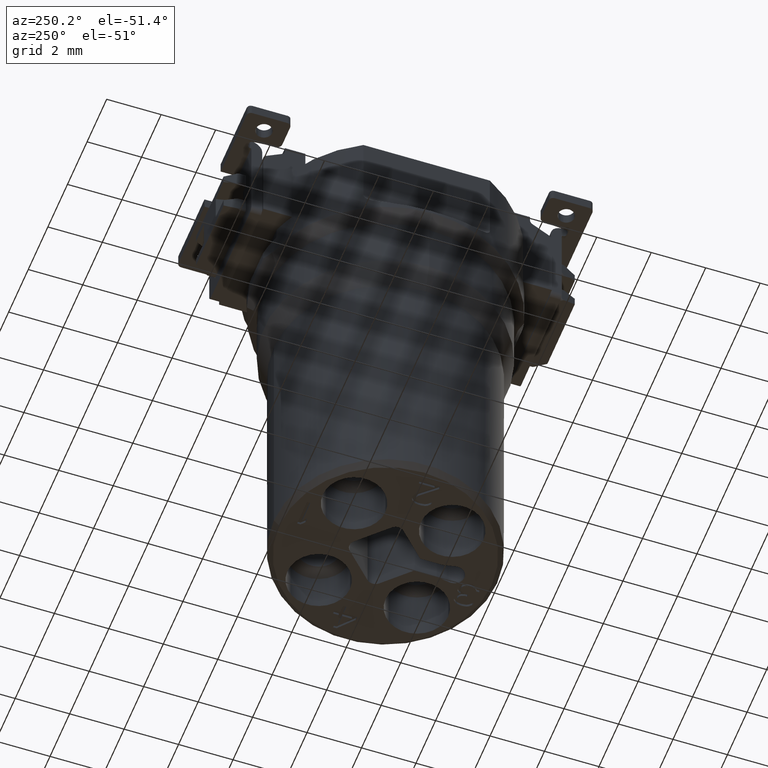
[diagram: clean part render]
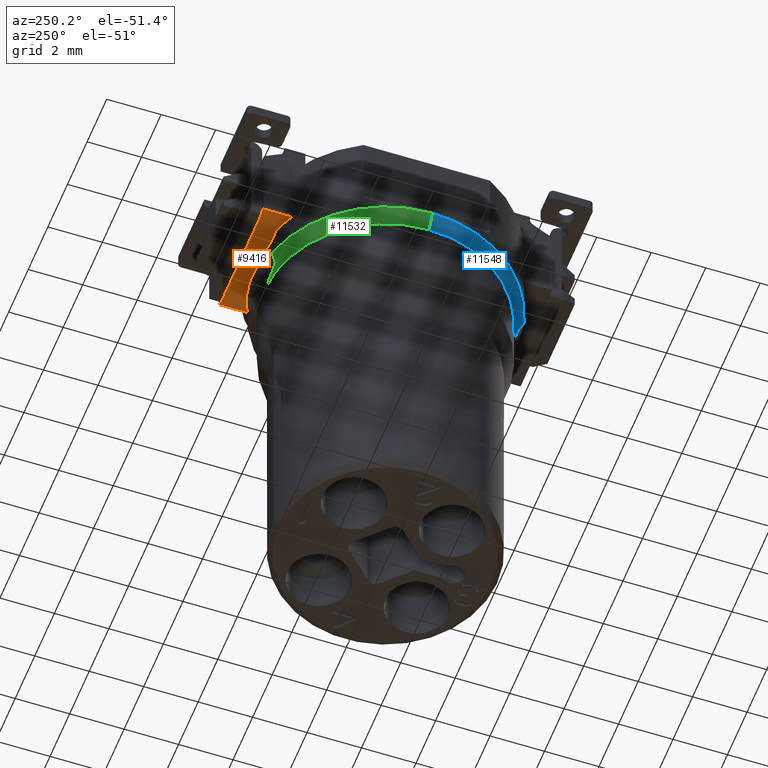
[diagram: same view with three faces highlighted in distinct colors, each labeled with its STEP entity id]
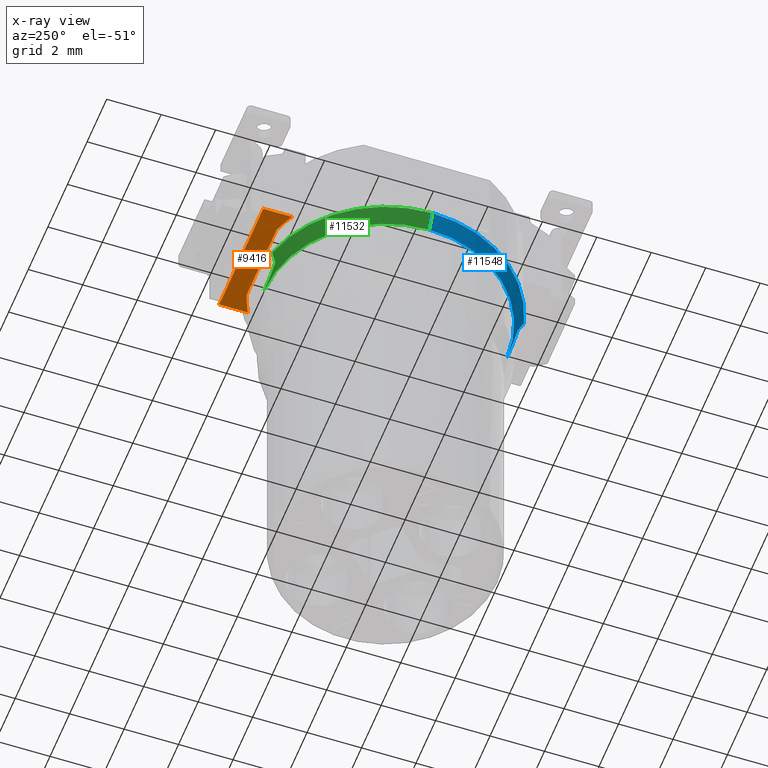
[diagram: x-ray of the same camera — body ghosted, the three highlighted faces saturated]
A machine part, auxiliary view with three faces highlighted in distinct colors.
The next image is the same camera in x-ray (body ghosted, the three faces saturated) — at least one of them is partly hidden behind the body in this view.
Their STEP definitions:

[orange] entity #9416 — the highlighted planar face has unit normal (0, 0, -1).
#894=DIRECTION('',(-1.E0,0.E0,0.E0));
#895=VECTOR('',#894,1.259600488516E-1);
#896=CARTESIAN_POINT('',(-2.124039951148E0,5.3E0,-3.7E0));
#897=LINE('',#896,#895);
#898=DIRECTION('',(0.E0,-1.E0,0.E0));
#899=VECTOR('',#898,1.060011792469E0);
#900=CARTESIAN_POINT('',(-2.25E0,5.3E0,-3.7E0));
#901=LINE('',#900,#899);
#902=CARTESIAN_POINT('',(0.E0,0.E0,-3.7E0));
#903=DIRECTION('',(0.E0,0.E0,1.E0));
#904=DIRECTION('',(-3.185184344046E-1,9.479166666667E-1,0.E0));
#905=AXIS2_PLACEMENT_3D('',#902,#903,#904);
#907=CARTESIAN_POINT('',(0.E0,0.E0,-3.7E0));
#908=DIRECTION('',(0.E0,0.E0,1.E0));
#909=DIRECTION('',(4.6875E-1,8.833308765689E-1,0.E0));
#910=AXIS2_PLACEMENT_3D('',#907,#908,#909);
#912=DIRECTION('',(0.E0,1.E0,0.E0));
#913=VECTOR('',#912,1.060011792469E0);
#914=CARTESIAN_POINT('',(2.25E0,4.239988207531E0,-3.7E0));
#915=LINE('',#914,#913);
#916=DIRECTION('',(-1.E0,0.E0,0.E0));
#917=VECTOR('',#916,1.259600488516E-1);
#918=CARTESIAN_POINT('',(2.25E0,5.3E0,-3.7E0));
#919=LINE('',#918,#917);
#920=DIRECTION('',(-1.E0,0.E0,0.E0));
#921=VECTOR('',#920,4.248079902297E0);
#922=CARTESIAN_POINT('',(2.124039951148E0,5.3E0,-3.7E0));
#923=LINE('',#922,#921);
#2411=DIRECTION('',(1.E0,0.E0,0.E0));
#2412=VECTOR('',#2411,3.057776970284E0);
#2413=CARTESIAN_POINT('',(-1.528888485142E0,4.55E0,-3.7E0));
#2414=LINE('',#2413,#2412);
#6758=CARTESIAN_POINT('',(-2.25E0,4.239988207531E0,-3.7E0));
#6760=VERTEX_POINT('',#6758);
#6768=CARTESIAN_POINT('',(2.25E0,4.239988207531E0,-3.7E0));
#6769=CARTESIAN_POINT('',(2.25E0,5.3E0,-3.7E0));
#6770=VERTEX_POINT('',#6768);
#6771=VERTEX_POINT('',#6769);
#6772=CARTESIAN_POINT('',(-2.25E0,5.3E0,-3.7E0));
#6773=VERTEX_POINT('',#6772);
#6777=CARTESIAN_POINT('',(1.528888485142E0,4.55E0,-3.7E0));
#6779=VERTEX_POINT('',#6777);
#6781=CARTESIAN_POINT('',(-1.528888485142E0,4.55E0,-3.7E0));
#6783=VERTEX_POINT('',#6781);
#8127=CARTESIAN_POINT('',(2.124039951148E0,5.3E0,-3.7E0));
#8128=CARTESIAN_POINT('',(-2.124039951148E0,5.3E0,-3.7E0));
#8129=VERTEX_POINT('',#8127);
#8130=VERTEX_POINT('',#8128);
#9397=CARTESIAN_POINT('',(0.E0,0.E0,-3.7E0));
#9398=DIRECTION('',(0.E0,0.E0,-1.E0));
#9399=DIRECTION('',(0.E0,-1.E0,0.E0));
#9400=AXIS2_PLACEMENT_3D('',#9397,#9398,#9399);
#9401=PLANE('',#9400);
#9403=ORIENTED_EDGE('',*,*,#9402,.T.);
#9404=ORIENTED_EDGE('',*,*,#9334,.T.);
#9405=ORIENTED_EDGE('',*,*,#8444,.F.);
#9407=ORIENTED_EDGE('',*,*,#9406,.T.);
#9409=ORIENTED_EDGE('',*,*,#9408,.F.);
#9410=ORIENTED_EDGE('',*,*,#8711,.T.);
#9411=ORIENTED_EDGE('',*,*,#8824,.T.);
#9413=ORIENTED_EDGE('',*,*,#9412,.T.);
#9414=EDGE_LOOP('',(#9403,#9404,#9405,#9407,#9409,#9410,#9411,#9413));
#9415=FACE_OUTER_BOUND('',#9414,.F.);
#906=CIRCLE('',#905,4.8E0);
#911=CIRCLE('',#910,4.8E0);
#8444=EDGE_CURVE('',#6783,#6760,#906,.T.);
#8711=EDGE_CURVE('',#6770,#6771,#915,.T.);
#8824=EDGE_CURVE('',#6771,#8129,#919,.T.);
#9334=EDGE_CURVE('',#6773,#6760,#901,.T.);
#9402=EDGE_CURVE('',#8130,#6773,#897,.T.);
#9406=EDGE_CURVE('',#6783,#6779,#2414,.T.);
#9408=EDGE_CURVE('',#6770,#6779,#911,.T.);
#9412=EDGE_CURVE('',#8129,#8130,#923,.T.);
#9416=ADVANCED_FACE('',(#9415),#9401,.T.);

[blue] entity #11548 — the highlighted conical surface has half-angle 34.992 deg.
#2529=CARTESIAN_POINT('',(0.E0,0.E0,-4.7E0));
#2530=DIRECTION('',(0.E0,0.E0,-1.E0));
#2531=DIRECTION('',(-2.689013447616E-1,-9.631677251577E-1,0.E0));
#2532=AXIS2_PLACEMENT_3D('',#2529,#2530,#2531);
#2534=CARTESIAN_POINT('',(-1.290726454855E0,-4.623205080757E0,-4.7E0));
#2535=CARTESIAN_POINT('',(-1.272161591638E0,-4.603177961809E0,
-4.734687987547E0));
#2536=CARTESIAN_POINT('',(-1.235148748706E0,-4.563641098756E0,
-4.803167843127E0));
#2537=CARTESIAN_POINT('',(-1.179928219084E0,-4.505896828941E0,
-4.903183852292E0));
#2538=CARTESIAN_POINT('',(-1.143281396589E0,-4.468455072203E0,
-4.968034877287E0));
#2539=CARTESIAN_POINT('',(-1.124988888834E0,-4.45E0,-5.E0));
#2541=CARTESIAN_POINT('',(-1.124988888834E0,-4.45E0,-5.E0));
#2542=CARTESIAN_POINT('',(-9.952974758998E-1,-4.45E0,-5.045409710093E0));
#2543=CARTESIAN_POINT('',(-7.389221636790E-1,-4.45E0,-5.120269708344E0));
#2544=CARTESIAN_POINT('',(-3.675566821245E-1,-4.45E0,-5.185575820879E0));
#2545=CARTESIAN_POINT('',(-1.218251350122E-1,-4.45E0,-5.2E0));
#2546=CARTESIAN_POINT('',(0.E0,-4.45E0,-5.2E0));
#2548=CARTESIAN_POINT('',(0.E0,0.E0,-5.2E0));
#2549=DIRECTION('',(0.E0,0.E0,1.E0));
#2550=DIRECTION('',(-1.E0,0.E0,0.E0));
#2551=AXIS2_PLACEMENT_3D('',#2548,#2549,#2550);
#2553=DIRECTION('',(5.734623443633E-1,0.E0,-8.192319205190E-1));
#2554=VECTOR('',#2553,6.103277807867E-1);
#2555=CARTESIAN_POINT('',(-4.8E0,0.E0,-4.7E0));
#2556=LINE('',#2555,#2554);
#6566=CARTESIAN_POINT('',(-4.45E0,0.E0,-5.2E0));
#6567=VERTEX_POINT('',#6566);
#6774=CARTESIAN_POINT('',(-4.8E0,0.E0,-4.7E0));
#6775=VERTEX_POINT('',#6774);
#6786=CARTESIAN_POINT('',(-1.290726454855E0,-4.623205080757E0,-4.7E0));
#6787=VERTEX_POINT('',#6786);
#6794=CARTESIAN_POINT('',(0.E0,-4.45E0,-5.2E0));
#6795=VERTEX_POINT('',#6794);
#7391=VERTEX_POINT('',#2541);
#11533=CARTESIAN_POINT('',(0.E0,0.E0,-4.95E0));
#11534=DIRECTION('',(0.E0,0.E0,1.E0));
#11535=DIRECTION('',(-1.E0,0.E0,0.E0));
#11536=AXIS2_PLACEMENT_3D('',#11533,#11534,#11535);
#11537=CONICAL_SURFACE('',#11536,4.625E0,3.499202019856E1);
#11538=ORIENTED_EDGE('',*,*,#8430,.F.);
#11540=ORIENTED_EDGE('',*,*,#11539,.T.);
#11542=ORIENTED_EDGE('',*,*,#11541,.T.);
#11544=ORIENTED_EDGE('',*,*,#11543,.F.);
#11545=ORIENTED_EDGE('',*,*,#11523,.F.);
#11546=EDGE_LOOP('',(#11538,#11540,#11542,#11544,#11545));
#11547=FACE_OUTER_BOUND('',#11546,.F.);
#2533=CIRCLE('',#2532,4.8E0);
#2540=B_SPLINE_CURVE_WITH_KNOTS('',3,(#2534,#2535,#2536,#2537,#2538,#2539),
.UNSPECIFIED.,.F.,.F.,(4,1,1,4),(0.E0,3.333333333333E-1,6.666666666667E-1,1.E0),
.UNSPECIFIED.);
#2547=B_SPLINE_CURVE_WITH_KNOTS('',3,(#2541,#2542,#2543,#2544,#2545,#2546),
.UNSPECIFIED.,.F.,.F.,(4,1,1,4),(0.E0,3.333333333333E-1,6.666666666667E-1,1.E0),
.UNSPECIFIED.);
#2552=CIRCLE('',#2551,4.45E0);
#8430=EDGE_CURVE('',#6787,#6775,#2533,.T.);
#11523=EDGE_CURVE('',#6775,#6567,#2556,.T.);
#11539=EDGE_CURVE('',#6787,#7391,#2540,.T.);
#11541=EDGE_CURVE('',#7391,#6795,#2547,.T.);
#11543=EDGE_CURVE('',#6567,#6795,#2552,.T.);
#11548=ADVANCED_FACE('',(#11547),#11537,.T.);

[green] entity #11532 — the highlighted conical surface has half-angle 34.992 deg.
#2505=CARTESIAN_POINT('',(0.E0,0.E0,-4.7E0));
#2506=DIRECTION('',(0.E0,0.E0,1.E0));
#2507=DIRECTION('',(-2.689013447616E-1,9.631677251577E-1,0.E0));
#2508=AXIS2_PLACEMENT_3D('',#2505,#2506,#2507);
#2510=CARTESIAN_POINT('',(0.E0,0.E0,-5.2E0));
#2511=DIRECTION('',(0.E0,0.E0,1.E0));
#2512=DIRECTION('',(0.E0,1.E0,0.E0));
#2513=AXIS2_PLACEMENT_3D('',#2510,#2511,#2512);
#2515=CARTESIAN_POINT('',(0.E0,4.45E0,-5.2E0));
#2516=CARTESIAN_POINT('',(-1.219344553001E-1,4.45E0,-5.2E0));
#2517=CARTESIAN_POINT('',(-3.678125658986E-1,4.45E0,-5.185553559415E0));
#2518=CARTESIAN_POINT('',(-7.392965885697E-1,4.45E0,-5.120178727336E0));
#2519=CARTESIAN_POINT('',(-9.954533681451E-1,4.45E0,-5.045355126512E0));
#2520=CARTESIAN_POINT('',(-1.124988888834E0,4.45E0,-5.E0));
#2522=CARTESIAN_POINT('',(-1.124988888834E0,4.45E0,-5.E0));
#2523=CARTESIAN_POINT('',(-1.143281403019E0,4.468455078690E0,
-4.968034866051E0));
#2524=CARTESIAN_POINT('',(-1.179928233828E0,4.505896844140E0,
-4.903183825967E0));
#2525=CARTESIAN_POINT('',(-1.235148762960E0,4.563641113875E0,
-4.803167816939E0));
#2526=CARTESIAN_POINT('',(-1.272161597662E0,4.603177968307E0,
-4.734687976292E0));
#2527=CARTESIAN_POINT('',(-1.290726454855E0,4.623205080757E0,-4.7E0));
#2553=DIRECTION('',(5.734623443633E-1,0.E0,-8.192319205190E-1));
#2554=VECTOR('',#2553,6.103277807867E-1);
#2555=CARTESIAN_POINT('',(-4.8E0,0.E0,-4.7E0));
#2556=LINE('',#2555,#2554);
#6566=CARTESIAN_POINT('',(-4.45E0,0.E0,-5.2E0));
#6567=VERTEX_POINT('',#6566);
#6774=CARTESIAN_POINT('',(-4.8E0,0.E0,-4.7E0));
#6775=VERTEX_POINT('',#6774);
#6784=CARTESIAN_POINT('',(-1.290726454855E0,4.623205080757E0,-4.7E0));
#6785=VERTEX_POINT('',#6784);
#6792=CARTESIAN_POINT('',(0.E0,4.45E0,-5.2E0));
#6793=VERTEX_POINT('',#6792);
#7376=VERTEX_POINT('',#2522);
#11517=CARTESIAN_POINT('',(0.E0,0.E0,-4.95E0));
#11518=DIRECTION('',(0.E0,0.E0,1.E0));
#11519=DIRECTION('',(-1.E0,0.E0,0.E0));
#11520=AXIS2_PLACEMENT_3D('',#11517,#11518,#11519);
#11521=CONICAL_SURFACE('',#11520,4.625E0,3.499202019856E1);
#11522=ORIENTED_EDGE('',*,*,#8432,.T.);
#11524=ORIENTED_EDGE('',*,*,#11523,.T.);
#11526=ORIENTED_EDGE('',*,*,#11525,.F.);
#11528=ORIENTED_EDGE('',*,*,#11527,.T.);
#11529=ORIENTED_EDGE('',*,*,#11508,.T.);
#11530=EDGE_LOOP('',(#11522,#11524,#11526,#11528,#11529));
#11531=FACE_OUTER_BOUND('',#11530,.F.);
#2509=CIRCLE('',#2508,4.8E0);
#2514=CIRCLE('',#2513,4.45E0);
#2521=B_SPLINE_CURVE_WITH_KNOTS('',3,(#2515,#2516,#2517,#2518,#2519,#2520),
.UNSPECIFIED.,.F.,.F.,(4,1,1,4),(0.E0,3.333333333333E-1,6.666666666667E-1,1.E0),
.UNSPECIFIED.);
#2528=B_SPLINE_CURVE_WITH_KNOTS('',3,(#2522,#2523,#2524,#2525,#2526,#2527),
.UNSPECIFIED.,.F.,.F.,(4,1,1,4),(0.E0,3.333333333333E-1,6.666666666667E-1,1.E0),
.UNSPECIFIED.);
#8432=EDGE_CURVE('',#6785,#6775,#2509,.T.);
#11508=EDGE_CURVE('',#7376,#6785,#2528,.T.);
#11523=EDGE_CURVE('',#6775,#6567,#2556,.T.);
#11525=EDGE_CURVE('',#6793,#6567,#2514,.T.);
#11527=EDGE_CURVE('',#6793,#7376,#2521,.T.);
#11532=ADVANCED_FACE('',(#11531),#11521,.T.);